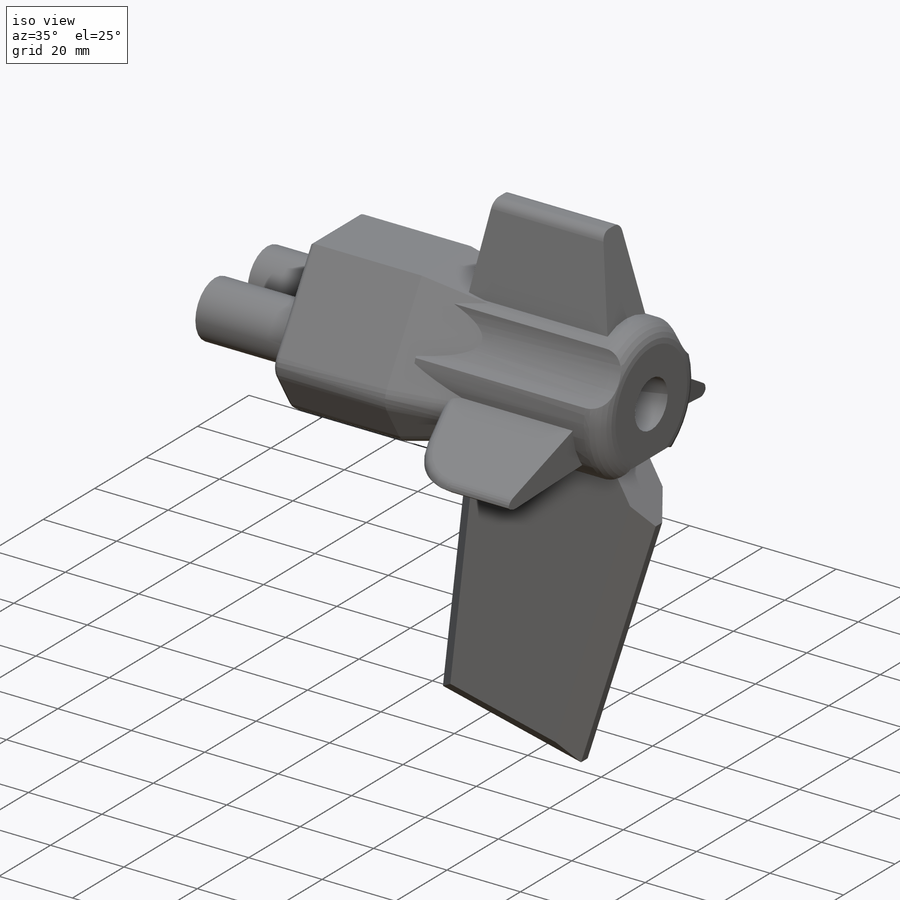
[diagram: iso view]
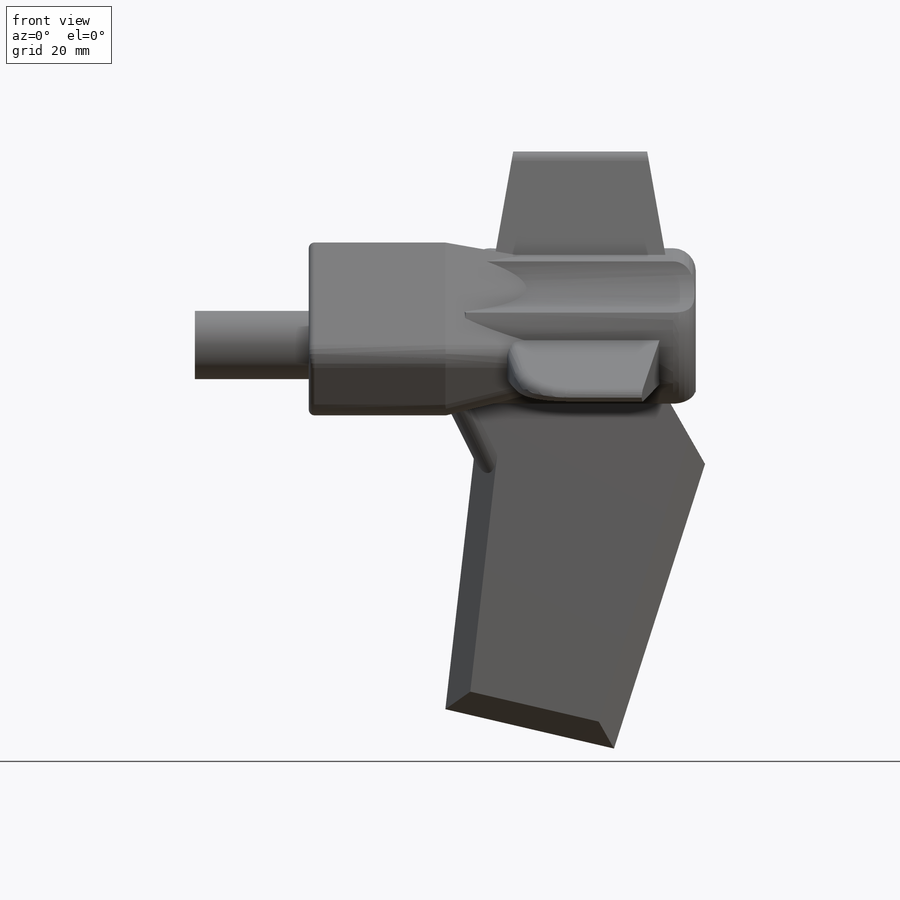
[diagram: front view]
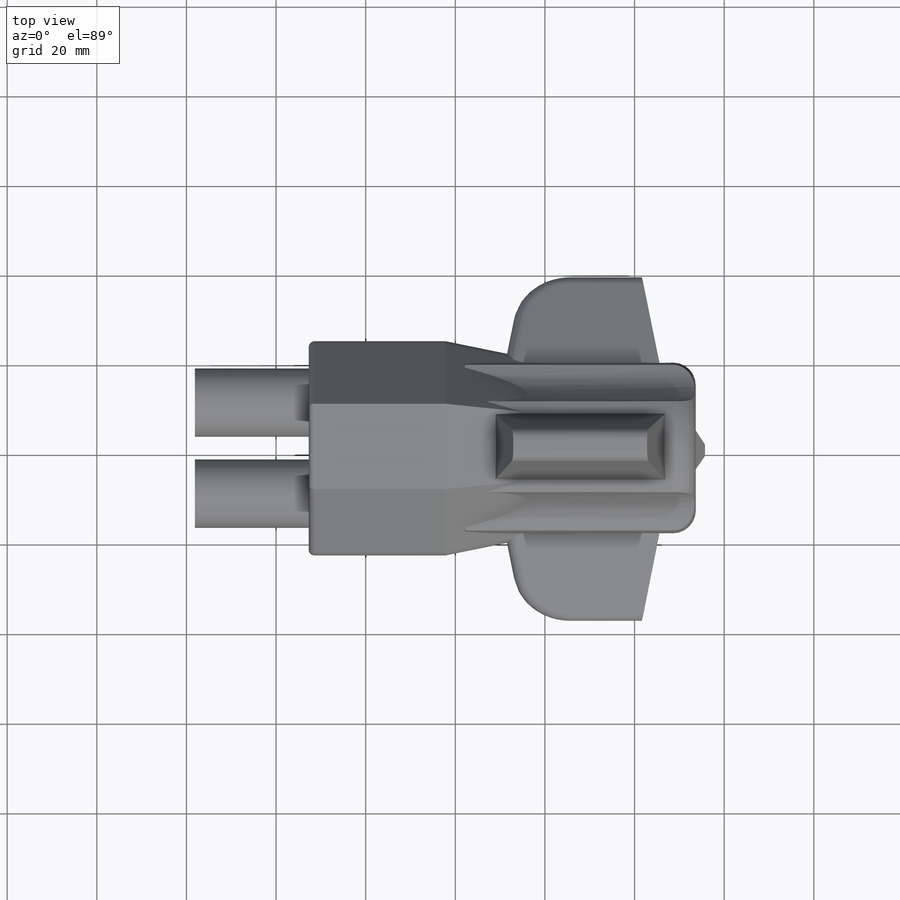
[diagram: top view]
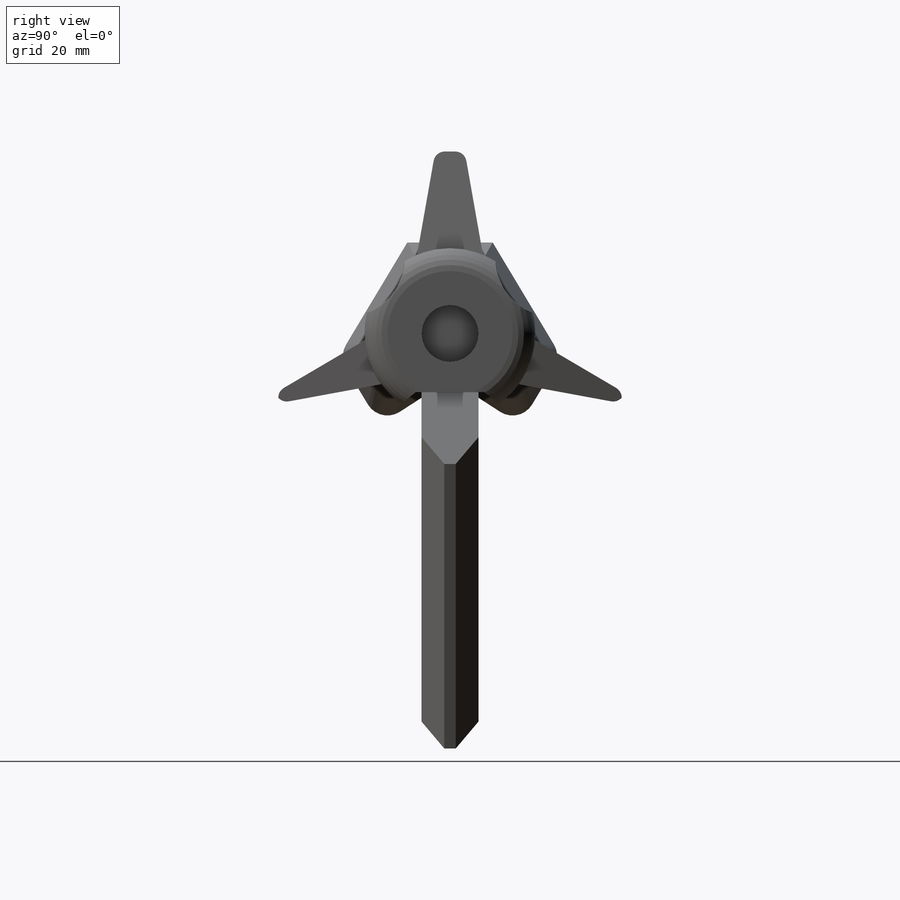
[diagram: right view]
SOLIDWORKS PART (.sldprt)
format: sldprt  version: not decoded by parser v0  size: 661,504 bytes
history: native  units: mm
features: sketch x9, fillet x9, extrude x8, plane x2, material x1, cut_extrude x1, mirror x1, chamfer x1 (+13 scaffold rows collapsed)
feature tree (45):
  scaffold x13  (default folders/planes/origin — collapsed)
  material  "Material <not specified>"
  sketch  "Sketch1"  dims[D1=12.7mm D2=3.81mm D3=17.78mm]
  extrude  "Boss-Extrude1"  Depth=10.16mm
  sketch  "Sketch2"  dims[D1=10.16mm D2=12.7mm]
  extrude  "Boss-Extrude2"  Depth=5.08mm
  fillet  "Fillet1"  Radius=5.08mm
  sketch  "Sketch3"  dims[D1=38.1mm D4=12.7mm D2=20.32mm D3=11.43mm D5=15.24mm D6=20.32mm D7=2.54mm]
  extrude  "Boss-Extrude3"  Depth=50.8mm
  fillet  "Fillet2"  Radius=5.08mm
  fillet  "Fillet3"  Radius=5.08mm
  sketch  "Sketch4"  dims[D1=12.7mm]
  cut_extrude  "Cut-Extrude1"  Depth=10.16mm
  plane  "Plane1"  Offset=10.16mm
  sketch  "Sketch5"  dims[D1=40.64mm]
  extrude  "Boss-Extrude4"  Depth=30.48mm
  fillet  "Fillet4"  Radius=2.54mm
  plane  "Plane2"
  sketch  "Sketch6"  dims[D1=11.43mm D2=35.56mm D3=20.32mm]
  extrude  "Boss-Extrude5"  Depth=25.4mm
  mirror  "Mirror1"
  fillet  "Fillet5"  Radius=12.7mm
  fillet  "Fillet6"  Radius=2.54mm
  sketch  "Sketch8"  dims[c1.D1=19.05mm c1.D2=25.4mm c1.D3=12.7mm c1.D4=6.35mm c1.D5=63.5mm c1.D6=20.32mm c1.D7=55.88mm c2.D1=17.78mm c2.D2=10.16mm]
  extrude  "Boss-Extrude7"  Depth=12.7mm
  chamfer  "Chamfer1"  Distance=5.08mm Angle=45deg
  fillet  "Fillet8"  Radius=5.08mm
  sketch  "Sketch9"  dims[c1.D1=20.32mm c1.D2=15.24mm c1.D3=25.4mm c1.D4=15.24mm c1.D5=7.62mm c2.D5=19.05mm]
  extrude  "Boss-Extrude8"  Depth=33.02mm
  fillet  "Fillet9"  Radius=5.08mm
  fillet  "Fillet10"  Radius=1.27mm
  sketch  "Sketch10"  dims[D1=15.24mm D2=2.54mm D3=20.32mm]
  extrude  "Boss-Extrude9"  Depth=25.4mm
decode coverage: 28 of 29 modeling features carry decoded parameters
note: suppression state not decoded; provenance and decode notes live in map.json
